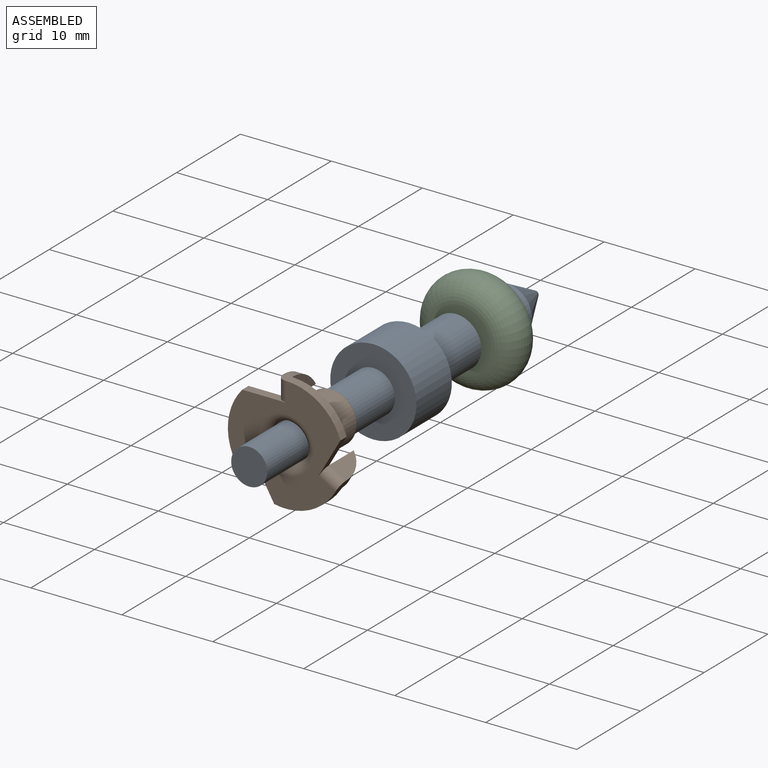
[diagram: assembled view]
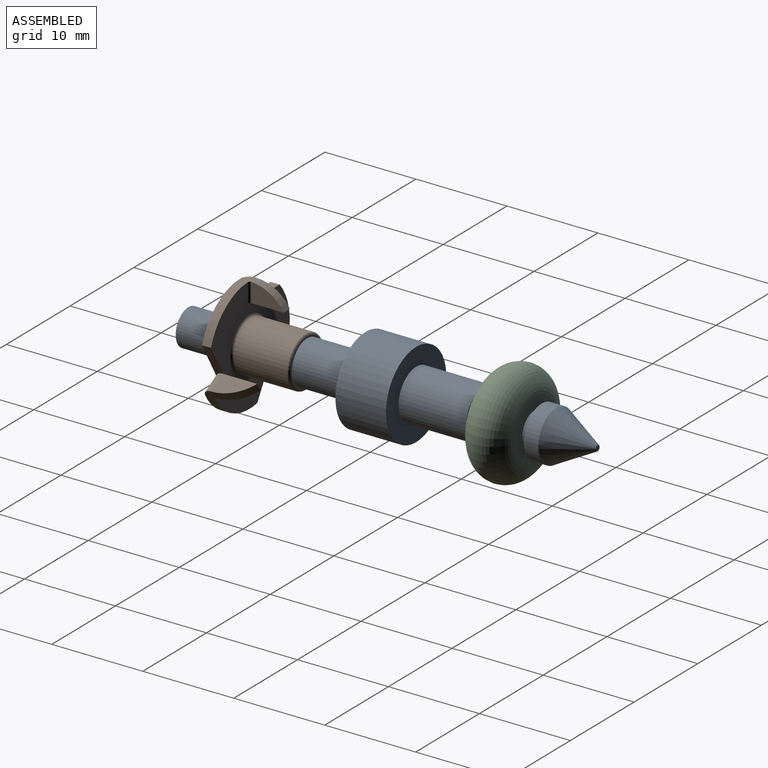
[diagram: assembled view, second angle]
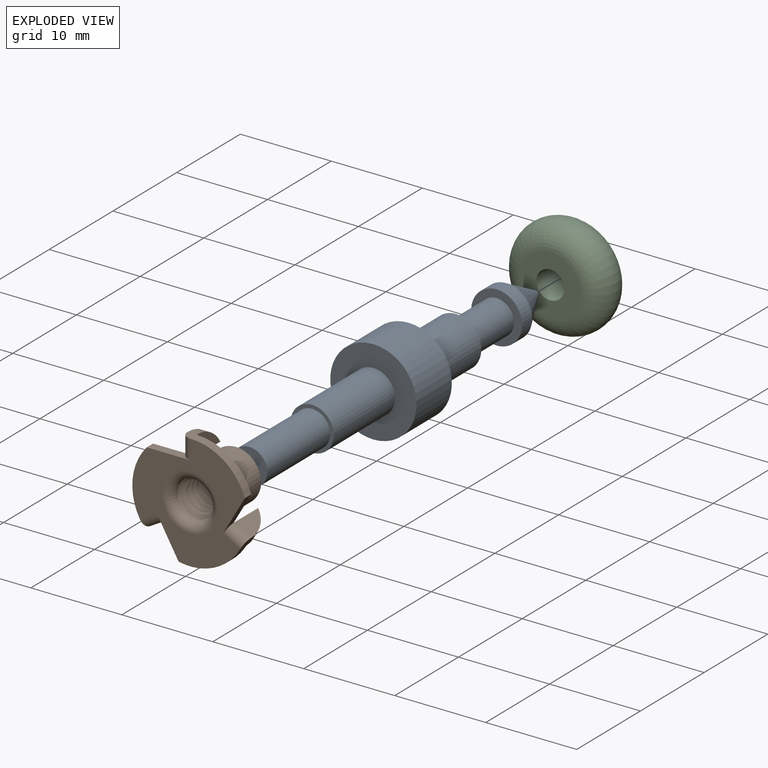
[diagram: exploded view]
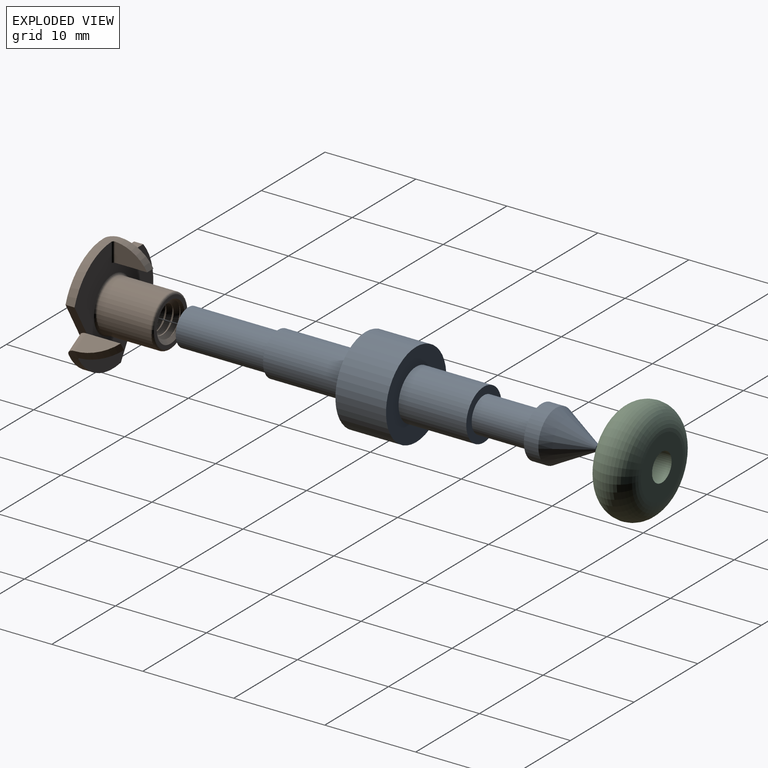
[diagram: exploded view, second angle]
ASSEMBLY  parts=3 mates=2
PART A: 14 faces, bbox 9.5x45x9.5 mm
  f0: plane 3.96x3.96mm, normal (0,-1,0), area 12.3mm2, adj f1
  f1: cylinder r=1.98mm len=9.88mm, axis (0,-1,0), area 123mm2, adj f0,f2
  f2: plane 4.76x4.76mm, normal (0,-1,0), area 5.5mm2, adj f1,f3
  f3: cylinder r=2.38mm len=9.6mm, axis (0,-1,0), area 143.7mm2, adj f2,f4
  f4: plane 9.47x9.47mm, normal (0,-1,0), area 52.7mm2, adj f3,f5
  f5: cylinder r=4.74mm len=9.47mm, axis (0,-1,0), area 165.6mm2, adj f4,f6
  f6: plane 9.47x9.47mm, normal (0,1,0), area 46.4mm2, adj f5,f7
  f7: cylinder r=2.77mm len=7.44mm, axis (0,-1,0), area 129.5mm2, adj f6,f8
  f8: plane 5.54x5.54mm, normal (0,1,0), area 12.5mm2, adj f7,f9
  f9: cylinder r=1.92mm len=6.35mm, axis (0,-1,0), area 76.5mm2, adj f8,f10
  f10: plane 5.59x5.59mm, normal (0,-1,0), area 13mm2, adj f9,f11
  f11: cylinder r=2.79mm len=5.59mm, axis (0,-1,0), area 27.9mm2, adj f10,f12
  f12: cone r=2.79mm half-angle=28.5deg, axis (0,-1,0), area 50.7mm2, adj f11,f13
  f13: plane 0.64x0.64mm, normal (0,1,0), area 0.3mm2, adj f12
PART B: 44 faces, bbox 12.4x7.6x12.7 mm
  f0: cone r=2.08mm half-angle=45deg, axis (0,-1,0), area 4.3mm2, adj f1,f35,f41,f43
  f1: cylinder r=1.57mm len=5.24mm, axis (0,1,0), area 6.5mm2, adj f0,f2,f3,f41,f43
  f2: cone r=1.57mm half-angle=45deg, axis (0,1,0), area 5.8mm2, adj f1,f3,f34,f41,f42,f43
  f3: cone r=1.57mm half-angle=45deg, axis (0,1,0), area 0mm2, adj f1,f2,f41
  f4: plane 12.7x12.37mm, normal (0,1,0), area 74.7mm2, adj f5,f6,f7,f8,f9,f11,f12,f13
  f5: plane 0.99x0.02mm, normal (0.5,0,-0.87), area 0mm2, adj f4,f10,f14,f29
  f6: plane 0.99x0.02mm, normal (0.5,0,0.87), area 0mm2, adj f4,f10,f13,f23
  f7: plane 0.99x0.03mm, normal (-1,0,0), area 0mm2, adj f4,f10,f12,f16
  f8: cylinder r=6.35mm len=6.76mm, axis (0,-1,0), area 7.8mm2, adj f4,f10,f14,f21,f25,f39
  f9: cylinder r=6.35mm len=7.38mm, axis (0,-1,0), area 7.8mm2, adj f4,f10,f12,f27,f31,f38
  f10: plane 12.7x12.37mm, normal (0,-1,0), area 75.7mm2, adj f5,f6,f7,f8,f9,f11,f12,f13
  f11: cylinder r=6.35mm len=6.02mm, axis (0,-1,0), area 7.8mm2, adj f4,f10,f13,f15,f18,f40
  f12: plane 4.76x0.99mm, normal (0,0,1), area 4.7mm2, adj f4,f7,f9,f10
  f13: plane 4.12x2.38mm, normal (0.87,0,-0.5), area 4.7mm2, adj f4,f6,f10,f11
  f14: plane 4.12x2.38mm, normal (-0.87,0,-0.5), area 4.7mm2, adj f4,f5,f8,f10
  f15: plane 0.99x0.99mm, normal (0,0,1), area 0.8mm2, adj f11,f17,f18
  f16: plane 4.76x1.24mm, normal (0,0,-1), area 4.5mm2, adj f4,f7,f17,f18,f19,f20,f40
  f17: cylinder r=0.99mm len=2.12mm, axis (0,0,1), area 3.3mm2, adj f10,f15,f16,f19
  f18: cylinder r=4.41mm len=3.77mm, axis (1,0,0), area 4.5mm2, adj f11,f15,f16,f19,f20,f40
  f19: plane 3.77x2.12mm, normal (-1,0,0), area 5.7mm2, adj f16,f17,f18
  f20: plane 3.52x2.12mm, normal (1,0,0), area 5.1mm2, adj f16,f18,f40
  f21: plane 0.99x0.86mm, normal (0.87,0,-0.5), area 0.8mm2, adj f8,f22,f25
  f22: cylinder r=0.99mm len=2.34mm, axis (0.87,0,-0.5), area 3.3mm2, adj f10,f21,f23,f24
  f23: plane 4.76x1.07mm, normal (-0.87,0,0.5), area 4.5mm2, adj f4,f6,f22,f24,f25,f26,f39
  f24: plane 3.77x1.84mm, normal (0.5,0,0.87), area 5.7mm2, adj f22,f23,f25
  f25: cylinder r=4.41mm len=3.77mm, axis (-0.5,0,-0.87), area 4.5mm2, adj f8,f21,f23,f24,f26,f39
  f26: plane 3.52x1.83mm, normal (-0.5,0,-0.87), area 5.1mm2, adj f23,f25,f39
  f27: plane 0.99x0.86mm, normal (-0.87,0,-0.5), area 0.8mm2, adj f9,f28,f31
  f28: cylinder r=0.99mm len=2.34mm, axis (-0.87,0,-0.5), area 3.3mm2, adj f10,f27,f29,f30
  f29: plane 4.76x1.07mm, normal (0.87,0,0.5), area 4.5mm2, adj f4,f5,f28,f30,f31,f32,f38
  f30: plane 3.77x1.84mm, normal (0.5,0,-0.87), area 5.7mm2, adj f28,f29,f31
  f31: cylinder r=4.41mm len=3.77mm, axis (-0.5,0,0.87), area 4.5mm2, adj f9,f27,f29,f30,f32,f38
  f32: plane 3.52x1.83mm, normal (-0.5,0,0.87), area 5.1mm2, adj f29,f31,f38
  f33: cylinder r=2.79mm len=5.85mm, axis (0,-1,0), area 102.8mm2, adj f36,f37
  f34: plane 5.09x5.09mm, normal (0,1,0), area 5.7mm2, adj f2,f36
  f35: torus R=3.07mm, axis (0,1,0), area 23.9mm2, adj f0,f10,f42
  f36: torus R=2.55mm, axis (0,1,0), area 6.6mm2, adj f33,f34
  f37: torus R=3.04mm, axis (0,1,0), area 7mm2, adj f4,f33
  f38: cylinder r=0.25mm len=1.96mm, axis (0.87,0,0.5), area 0.8mm2, adj f4,f9,f29,f31,f32
  f39: cylinder r=0.25mm len=1.96mm, axis (-0.87,0,0.5), area 0.8mm2, adj f4,f8,f23,f25,f26
  f40: cylinder r=0.25mm len=2.12mm, axis (0,0,1), area 0.8mm2, adj f4,f11,f16,f18,f20
  f41: bspline ~6.67x4.17mm, area 49.8mm2, adj f0,f1,f2,f3,f42
  f42: cylinder r=2.08mm len=6.27mm, axis (0,1,0), area 10.3mm2, adj f2,f35,f41,f43
  f43: bspline ~6.67x4.17mm, area 49.9mm2, adj f0,f1,f2,f42
PART C: 4 faces, bbox 4.8x12.3x12.3 mm
  f0: torus R=3.31mm, axis (1,0,0), area 227.9mm2, adj f1,f3
  f1: plane 6.63x6.63mm, normal (1,0,0), area 27.1mm2, adj f0,f2
  f2: cylinder r=1.53mm len=4.78mm, axis (1,0,0), area 46.1mm2, adj f1,f3
  f3: plane 6.63x6.63mm, normal (-1,0,0), area 27.1mm2, adj f0,f2
PLACE A at identity fixed
PLACE B t=(0,5.72,0)mm
PLACE C rot(axis=(-0.58,0.58,-0.58),120deg) t=(0,140.18,474.05)mm
MATE slider B.f0 <-> A.f1  axis (0,-1,0) through (0,9.88,0)mm
MATE fastened C.f0 <-> A.f1  axis (0,-1,0) through (0,35.66,0)mm
